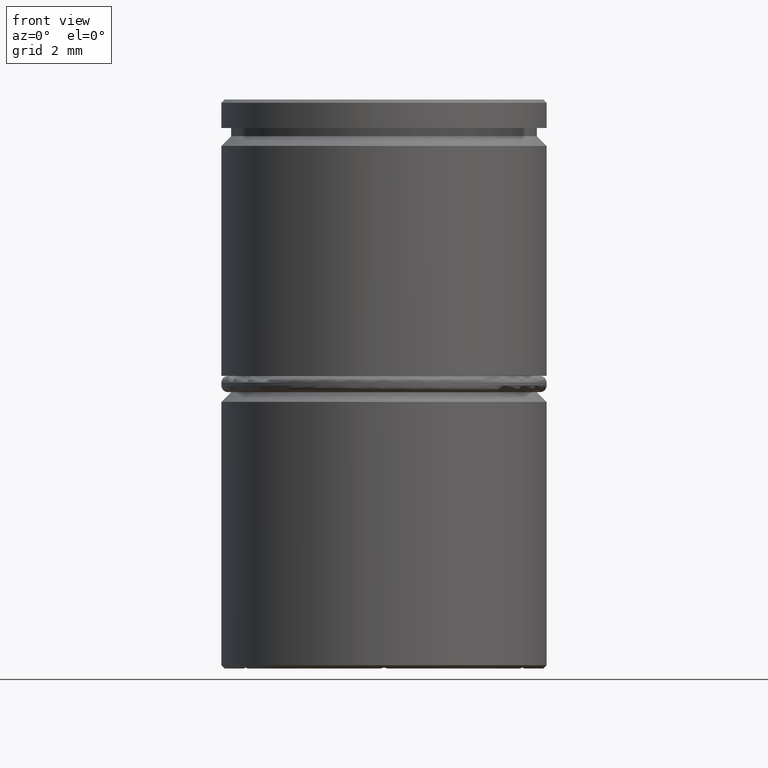
[diagram: clean part render]
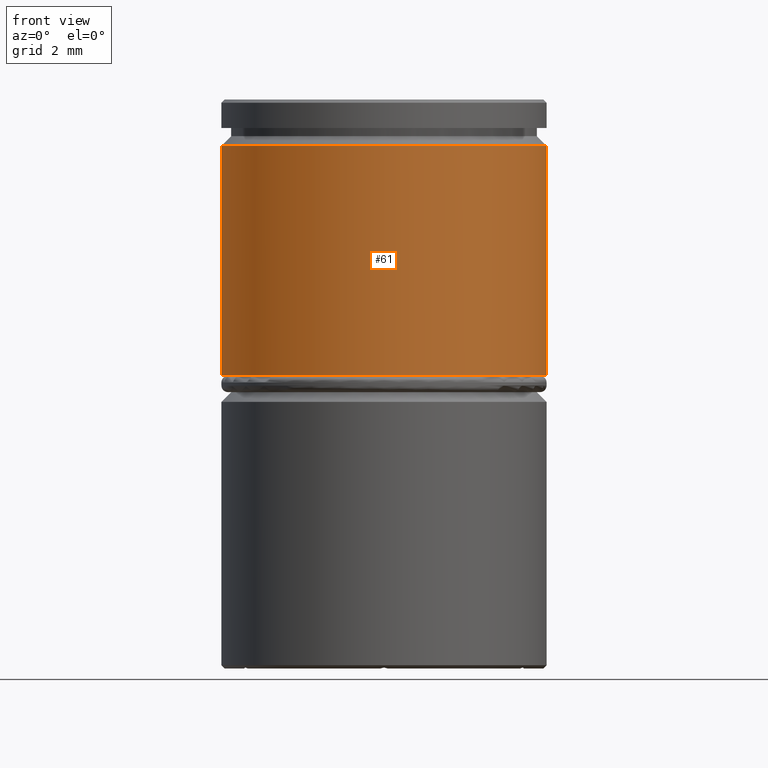
[diagram: same view with one face highlighted and labeled with its STEP entity id]
A machine part, front view. The second image highlights one B-rep face of the part: STEP entity #61.
In plain terms, the highlighted cylindrical surface (partial cylindrical patch) has radius 5 mm, axis along (-0, -0, 1).
Its self-contained STEP definition (entity closure, byte-faithful):
#6 = CARTESIAN_POINT ( 'NONE',  ( 5.000000000000000000, 0.000000000000000000, -1.424999999999994049 ) ) ;
#12 = VECTOR ( 'NONE', #433, 1000.000000000000000 ) ;
#61 = ADVANCED_FACE ( 'NONE', ( #322 ), #755, .T. ) ;
#84 = ORIENTED_EDGE ( 'NONE', *, *, #458, .T. ) ;
#110 = CARTESIAN_POINT ( 'NONE',  ( -5.000000000000000000, 6.123233995736766282E-16, 0.000000000000000000 ) ) ;
#162 = EDGE_CURVE ( 'NONE', #1363, #951, #1321, .T. ) ;
#183 = AXIS2_PLACEMENT_3D ( 'NONE', #1044, #1094, #780 ) ;
#224 = VERTEX_POINT ( 'NONE', #863 ) ;
#260 = DIRECTION ( 'NONE',  ( 0.000000000000000000, 0.000000000000000000, -1.000000000000000000 ) ) ;
#315 = DIRECTION ( 'NONE',  ( -0.000000000000000000, -0.000000000000000000, 1.000000000000000000 ) ) ;
#322 = FACE_OUTER_BOUND ( 'NONE', #672, .T. ) ;
#337 = CARTESIAN_POINT ( 'NONE',  ( -5.000000000000000000, 6.123233995736766282E-16, -8.500000000000000000 ) ) ;
#371 = EDGE_CURVE ( 'NONE', #959, #224, #563, .T. ) ;
#433 = DIRECTION ( 'NONE',  ( -0.000000000000000000, -0.000000000000000000, 1.000000000000000000 ) ) ;
#458 = EDGE_CURVE ( 'NONE', #224, #1363, #515, .T. ) ;
#476 = DIRECTION ( 'NONE',  ( 1.000000000000000000, 0.000000000000000000, 0.000000000000000000 ) ) ;
#515 = LINE ( 'NONE', #1020, #1164 ) ;
#563 = CIRCLE ( 'NONE', #1279, 5.000000000000000000 ) ;
#597 = DIRECTION ( 'NONE',  ( 1.000000000000000000, 0.000000000000000000, 0.000000000000000000 ) ) ;
#672 = EDGE_LOOP ( 'NONE', ( #913, #871, #84, #876 ) ) ;
#755 = CYLINDRICAL_SURFACE ( 'NONE', #183, 5.000000000000000000 ) ;
#780 = DIRECTION ( 'NONE',  ( 1.000000000000000000, 0.000000000000000000, 0.000000000000000000 ) ) ;
#832 = AXIS2_PLACEMENT_3D ( 'NONE', #1213, #260, #476 ) ;
#863 = CARTESIAN_POINT ( 'NONE',  ( 5.000000000000000000, 0.000000000000000000, -8.500000000000000000 ) ) ;
#871 = ORIENTED_EDGE ( 'NONE', *, *, #371, .T. ) ;
#876 = ORIENTED_EDGE ( 'NONE', *, *, #162, .T. ) ;
#883 = EDGE_CURVE ( 'NONE', #959, #951, #1277, .T. ) ;
#913 = ORIENTED_EDGE ( 'NONE', *, *, #883, .F. ) ;
#951 = VERTEX_POINT ( 'NONE', #1270 ) ;
#959 = VERTEX_POINT ( 'NONE', #337 ) ;
#1020 = CARTESIAN_POINT ( 'NONE',  ( 5.000000000000000000, 0.000000000000000000, 0.000000000000000000 ) ) ;
#1044 = CARTESIAN_POINT ( 'NONE',  ( 0.000000000000000000, 0.000000000000000000, 0.000000000000000000 ) ) ;
#1094 = DIRECTION ( 'NONE',  ( -0.000000000000000000, -0.000000000000000000, 1.000000000000000000 ) ) ;
#1164 = VECTOR ( 'NONE', #315, 1000.000000000000000 ) ;
#1213 = CARTESIAN_POINT ( 'NONE',  ( 0.000000000000000000, 0.000000000000000000, -1.424999999999994049 ) ) ;
#1219 = DIRECTION ( 'NONE',  ( -0.000000000000000000, -0.000000000000000000, 1.000000000000000000 ) ) ;
#1230 = CARTESIAN_POINT ( 'NONE',  ( 0.000000000000000000, 0.000000000000000000, -8.500000000000000000 ) ) ;
#1270 = CARTESIAN_POINT ( 'NONE',  ( -5.000000000000000000, 6.123233995736766282E-16, -1.424999999999994049 ) ) ;
#1277 = LINE ( 'NONE', #110, #12 ) ;
#1279 = AXIS2_PLACEMENT_3D ( 'NONE', #1230, #1219, #597 ) ;
#1321 = CIRCLE ( 'NONE', #832, 5.000000000000000000 ) ;
#1363 = VERTEX_POINT ( 'NONE', #6 ) ;